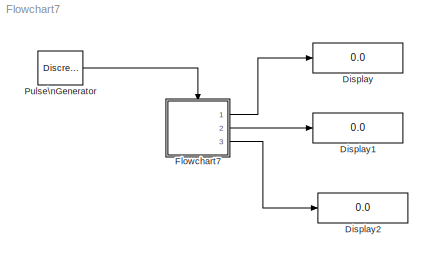
MODEL Flowchart7
KIND model
BLOCK [Display] Display
  Decimation = 1
  Ports = [1]
BLOCK [Display] Display1
  Decimation = 1
  Ports = [1]
BLOCK [Display] Display2
  Decimation = 1
  Ports = [1]
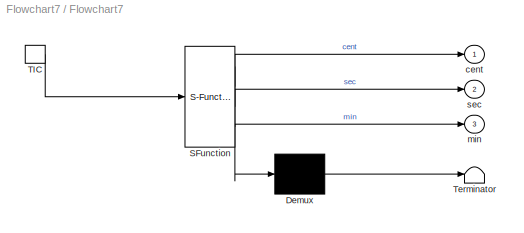
BLOCK [SubSystem] Flowchart7
  MaskDescription = Stateflow diagram
  MaskDisplay = plot(sf('Private','sfblk','xIcon'),sf('Private','sfblk','yIcon'));text(0.5,0,sf('Private', 'sfblk', 'tIcon'),'HorizontalAl','Center','VerticalAl','Bottom');
  MaskIconFrame = off
  MaskIconOpaque = off
  MaskIconRotate = none
  MaskIconUnits = autoscale
  MaskSelfModifiable = on
  MaskType = Stateflow
  MinAlgLoopOccurrences = off
  Ports = [0, 3, 0, 1]
  RTWSystemCode = Auto
  TreatAsAtomicUnit = off
BLOCK [Demux] Flowchart7/ Demux 
  Outputs = 1
  Ports = [1, 1]
BLOCK [S-Function] Flowchart7/ SFunction 
  FunctionName = sf_sfun
  PortCounts = [1 4]
  Ports = [1, 4]
  Tag = Stateflow S-Function Flowchart7 1
BLOCK [Terminator] Flowchart7/ Terminator 
BLOCK [TriggerPort] Flowchart7/TIC
  Ports = [0, 1]
  ShowOutputPort = on
  TriggerType = either
BLOCK [Outport] Flowchart7/cent
  BusOutputAsStruct = off
  IconDisplay = Port number
BLOCK [Outport] Flowchart7/min
  BusOutputAsStruct = off
  IconDisplay = Port number
  Port = 3
BLOCK [Outport] Flowchart7/sec
  BusOutputAsStruct = off
  IconDisplay = Port number
  Port = 2
BLOCK [DiscretePulseGenerator] Pulse\nGenerator
  Ports = [0, 1]
LINE Flowchart7/ Demux :1 -> Flowchart7/ Terminator :1
LINE Flowchart7/ SFunction :1 -> Flowchart7/ Demux :1
LINE Flowchart7/ SFunction :2 -> Flowchart7/cent:1
LINE Flowchart7/ SFunction :3 -> Flowchart7/sec:1
LINE Flowchart7/ SFunction :4 -> Flowchart7/min:1
LINE Flowchart7/TIC:1 -> Flowchart7/ SFunction :1
LINE Flowchart7:1 -> Display:1
LINE Flowchart7:2 -> Display1:1
LINE Flowchart7:3 -> Display2:1
LINE Pulse\nGenerator:1 -> Flowchart7:trigger
CHART Flowchart7 states=0 transitions=5
